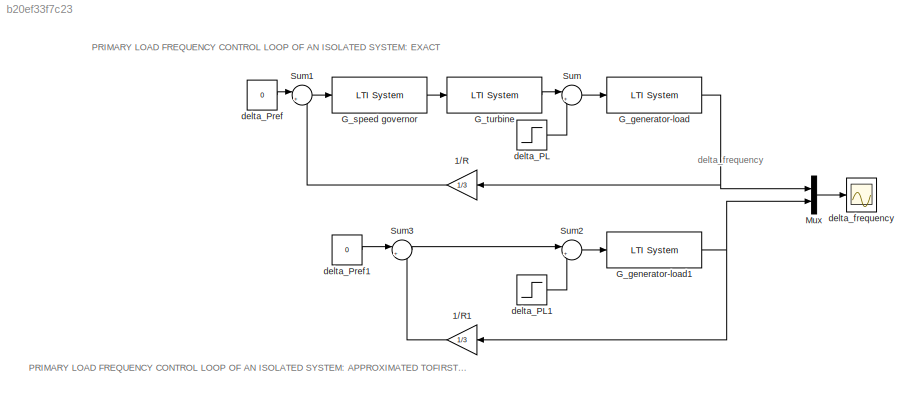
MODEL slx_b20ef33f7c23
KIND model
BLOCK [Gain] 1//R
  Gain = 1/3
  OutDataTypeStr = Inherit: Inherit via internal rule
  ParamDataTypeStr = Inherit: Inherit via internal rule
  SaturateOnIntegerOverflow = off
BLOCK [Gain] 1//R1
  Gain = 1/3
  OutDataTypeStr = Inherit: Inherit via internal rule
  ParamDataTypeStr = Inherit: Inherit via internal rule
  SaturateOnIntegerOverflow = off
BLOCK [Reference] G_generator-load  REF=cstblocks/LTI System
  IC = []
  Ports = [1, 1]
  SourceBlock = cstblocks/LTI System
  SourceType = LTI Block
  sys = tf(100,[20 1])
BLOCK [Reference] G_generator-load1  REF=cstblocks/LTI System
  IC = []
  Ports = [1, 1]
  SourceBlock = cstblocks/LTI System
  SourceType = LTI Block
  sys = tf(100,[20 1])
BLOCK [Reference] G_speed governor  REF=cstblocks/LTI System
  IC = []
  Ports = [1, 1]
  SourceBlock = cstblocks/LTI System
  SourceType = LTI Block
  sys = tf(10,[0.4 1])
BLOCK [Reference] G_turbine  REF=cstblocks/LTI System
  IC = []
  Ports = [1, 1]
  SourceBlock = cstblocks/LTI System
  SourceType = LTI Block
  sys = tf(0.1,[0.5 1])
BLOCK [Mux] Mux
  DisplayOption = bar
  Inputs = 2
  Ports = [2, 1]
BLOCK [Sum] Sum
  IconShape = round
  InputSameDT = off
  Inputs = |+-
  OutDataTypeStr = Inherit: Inherit via internal rule
  Ports = [2, 1]
  SaturateOnIntegerOverflow = off
BLOCK [Sum] Sum1
  IconShape = round
  InputSameDT = off
  Inputs = |+-
  OutDataTypeStr = Inherit: Inherit via internal rule
  Ports = [2, 1]
  SaturateOnIntegerOverflow = off
BLOCK [Sum] Sum2
  IconShape = round
  InputSameDT = off
  Inputs = |+-
  OutDataTypeStr = Inherit: Inherit via internal rule
  Ports = [2, 1]
  SaturateOnIntegerOverflow = off
BLOCK [Sum] Sum3
  IconShape = round
  InputSameDT = off
  Inputs = |+-
  OutDataTypeStr = Inherit: Inherit via internal rule
  Ports = [2, 1]
  SaturateOnIntegerOverflow = off
BLOCK [Step] delta_PL
  After = 0.01
  SampleTime = 0
BLOCK [Step] delta_PL1
  After = 0.01
  SampleTime = 0
BLOCK [Constant] delta_Pref
  Value = 0
BLOCK [Constant] delta_Pref1
  Value = 0
BLOCK [Scope] delta_frequency
  Floating = off
  NumInputPorts = 1
  Ports = [1]
  ShowLegends = off
  YMax = 0.005
  YMin = -0.05
ANNOTATION (root): PRIMARY LOAD FREQUENCY CONTROL LOOP OF AN ISOLATED SYSTEM: APPROXIMATED TOFIRST ORDER
ANNOTATION (root): PRIMARY LOAD FREQUENCY CONTROL LOOP OF AN ISOLATED SYSTEM: EXACT
ANNOTATION (root): delta_frequency
LINE 1//R1:1 -> Sum3:2
LINE 1//R:1 -> Sum1:2
NET G_generator-load1:1 -> 1//R1:1, Mux:2
NET G_generator-load:1 -> 1//R:1, Mux:1
LINE G_speed governor:1 -> G_turbine:1
LINE G_turbine:1 -> Sum:1
LINE Mux:1 -> delta_frequency:1
LINE Sum1:1 -> G_speed governor:1
LINE Sum2:1 -> G_generator-load1:1
LINE Sum3:1 -> Sum2:1
LINE Sum:1 -> G_generator-load:1
LINE delta_PL1:1 -> Sum2:2
LINE delta_PL:1 -> Sum:2
LINE delta_Pref1:1 -> Sum3:1
LINE delta_Pref:1 -> Sum1:1
note: NET lines group one-source signal fan-out (src -> all destinations, sorted); 1:1 wires keep LINE
